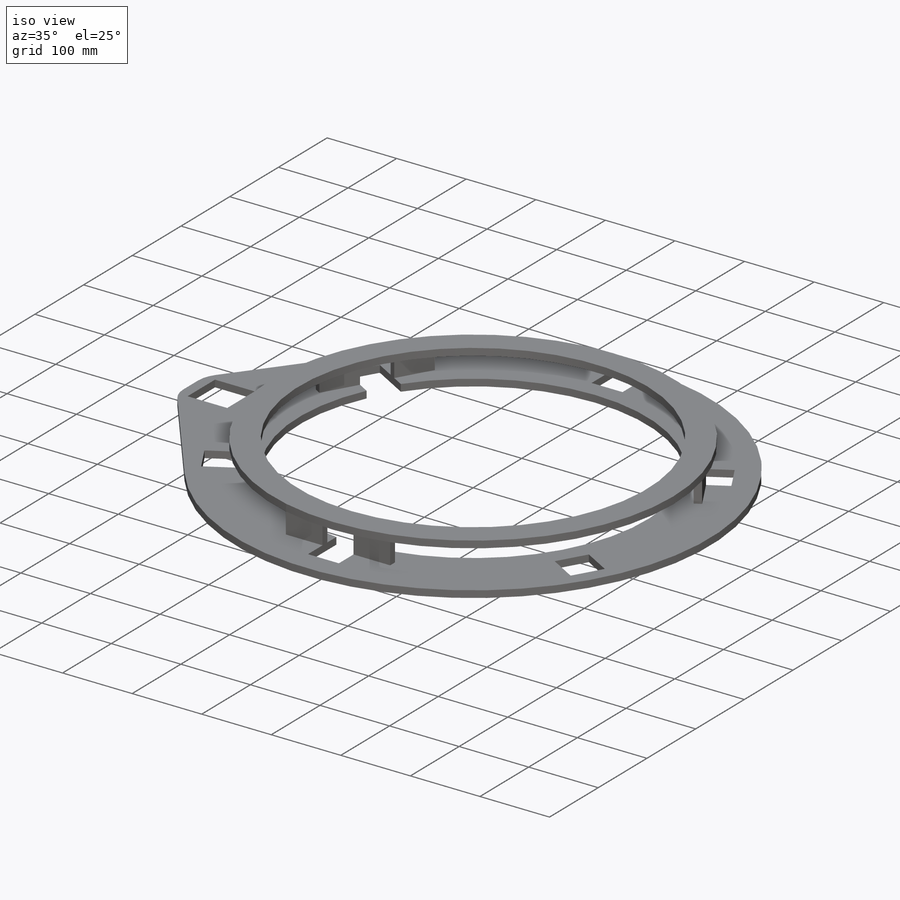
[diagram: iso view]
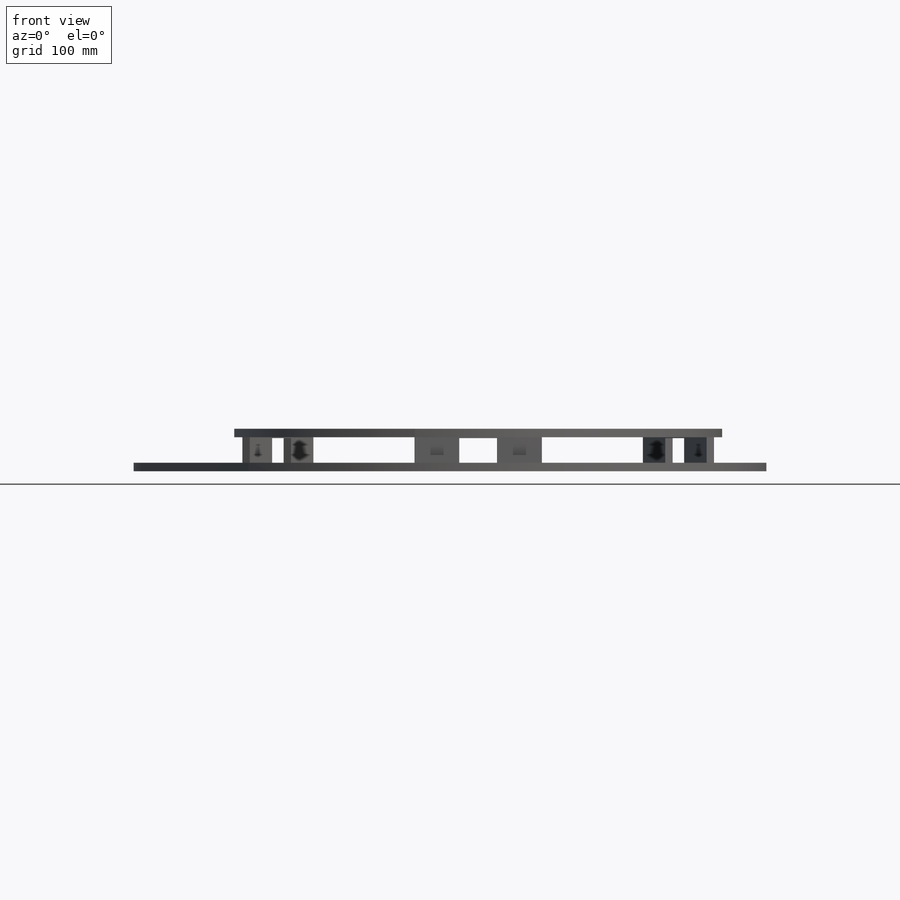
[diagram: front view]
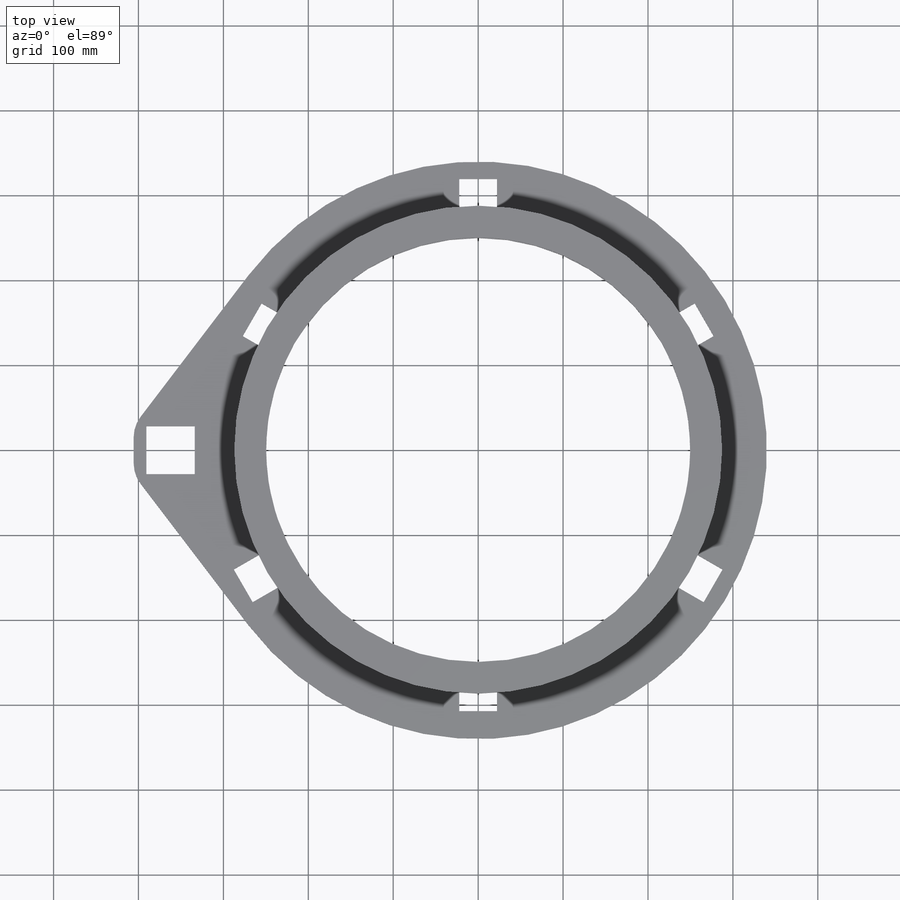
[diagram: top view]
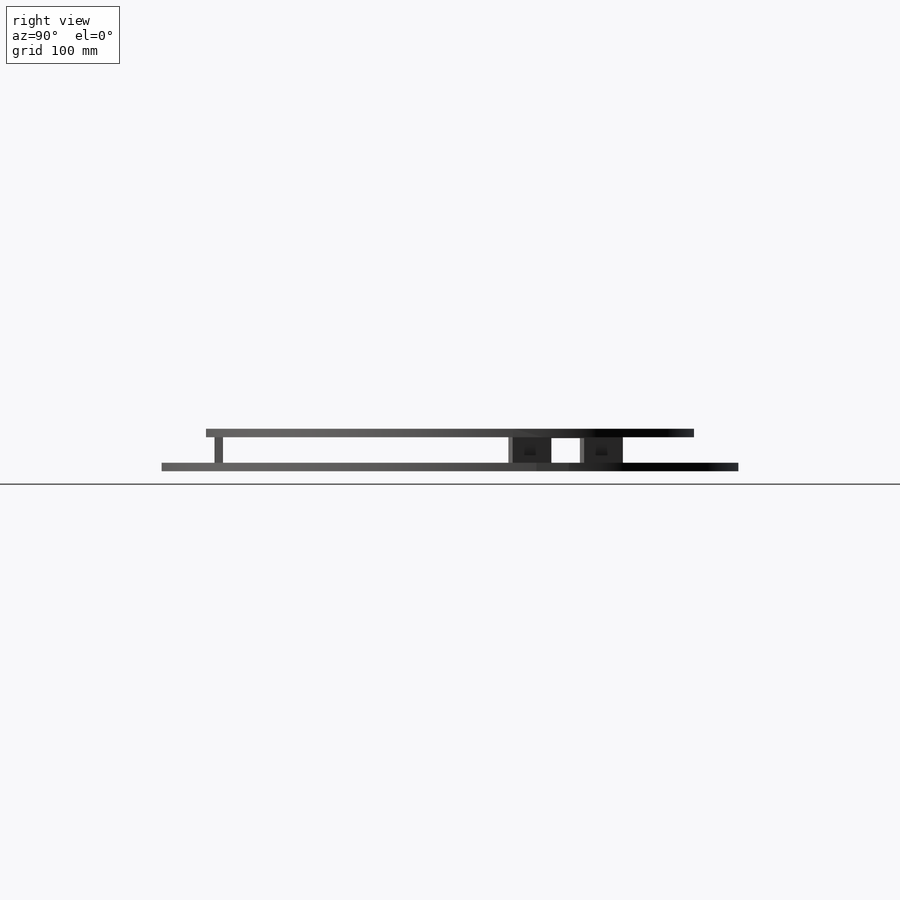
[diagram: right view]
SOLIDWORKS PART (.sldprt)
format: sldprt  version: not decoded by parser v0  size: 325,632 bytes
history: native  units: mm
features: sketch x6, extrude x4, cut_extrude x2, material x1, pattern_circular x1 (+11 scaffold rows collapsed)
feature tree (25):
  scaffold x11  (default folders/planes/origin — collapsed)
  material  "Material <not specified>"
  sketch  "Sketch1"  dims[D1=500.0mm D5=680.0mm D2=44.45mm D3=44.45mm D4=275.0mm D6=3.0]
  extrude  "Boss-Extrude1"  Depth=10mm
  sketch  "Sketch2"  dims[c1.D1=500.0mm c1.D2=30.1625mm c1.D3=576.2mm c2.D1=40.0mm c2.D3=38.1mm c2.D4=12.7mm c2.D5=22.25mm c2.D6=10.0mm c2.D7=75.0mm c3.D4=12.7mm c3.D8=3.0]
  extrude  "Boss-Extrude2"  Depth=40mm
  sketch  "Sketch3"  dims[D1=22.225mm D2=44.45mm D3=12.7mm D4=10.0mm D5=5.0mm D6=22.225mm]
  cut_extrude  "Cut-Extrude1"  Depth=60mm
  pattern_circular  "CirPattern1"  Count=3 Angle=120deg
  sketch  "Sketch4"  dims[D1=500.0mm]
  extrude  "Boss-Extrude3"  Depth=10mm
  sketch  "Sketch5"  dims[D2=40.0mm D1=15.0mm D3=57.0mm]
  extrude  "Boss-Extrude4"  Depth=10mm
  sketch  "Sketch6"  dims[D1=57.0mm]
  cut_extrude  "Cut-Extrude2"  Depth=10mm
decode coverage: 13 of 13 modeling features carry decoded parameters
note: suppression state not decoded; provenance and decode notes live in map.json
